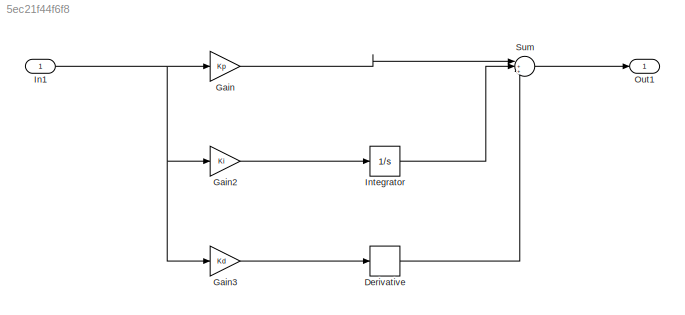
MODEL slx_5ec21f44f6f8
KIND model
CONFIG AbsTol = auto
CONFIG EnableMultiTasking = off
CONFIG FixedStep = auto
CONFIG MaxStep = auto
CONFIG MinStep = auto
CONFIG RelTol = 1e-3
CONFIG SampleTimeConstraint = Unconstrained
CONFIG Solver = ode15s
CONFIG SolverName = ode15s
CONFIG StartTime = 0.0
CONFIG StopTime = 0.2
BLOCK [Derivative] Derivative 
BLOCK [Gain] Gain
  Gain = Kp
BLOCK [Gain] Gain2
  Gain = Ki
BLOCK [Gain] Gain3
  Gain = Kd
BLOCK [Inport] In1
  OutDataTypeStr = double
  PortDimensions = 1
  SampleTime = [0,1]
  SamplingMode = Sample based
  SignalType = real
BLOCK [Integrator] Integrator 
  Ports = [1, 1]
BLOCK [Outport] Out1
  OutDataTypeStr = double
  PortDimensions = 1
  SampleTime = 0
  SamplingMode = Sample based
  SignalType = real
BLOCK [Sum] Sum
  Inputs = |+++
  Ports = [3, 1]
LINE Derivative :1 -> Sum:3
LINE Gain2:1 -> Integrator :1
LINE Gain3:1 -> Derivative :1
LINE Gain:1 -> Sum:1
NET In1:1 -> Gain2:1, Gain3:1, Gain:1
LINE Integrator :1 -> Sum:2
LINE Sum:1 -> Out1:1
note: NET lines group one-source signal fan-out (src -> all destinations, sorted); 1:1 wires keep LINE
